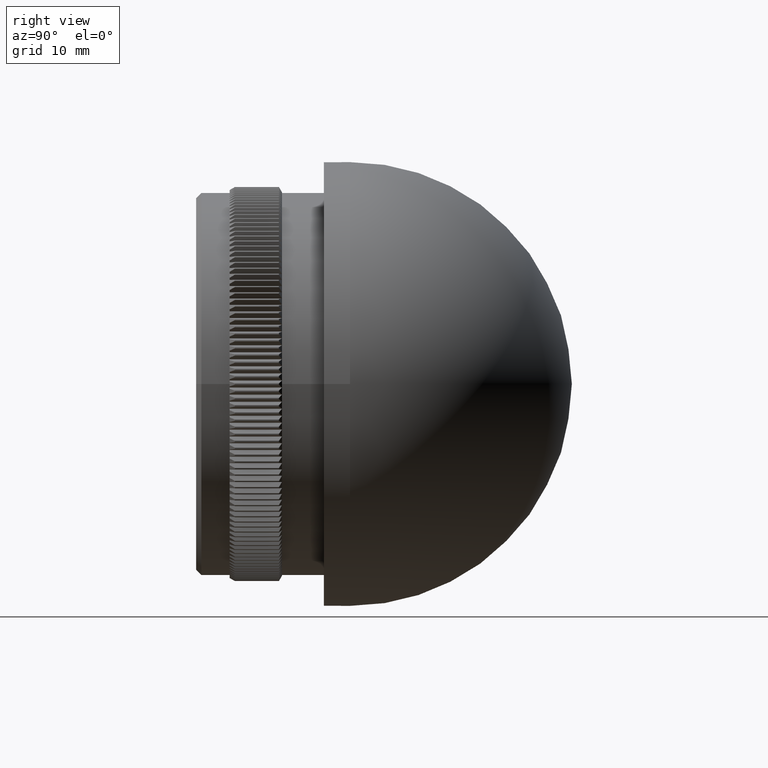
[diagram: clean part render]
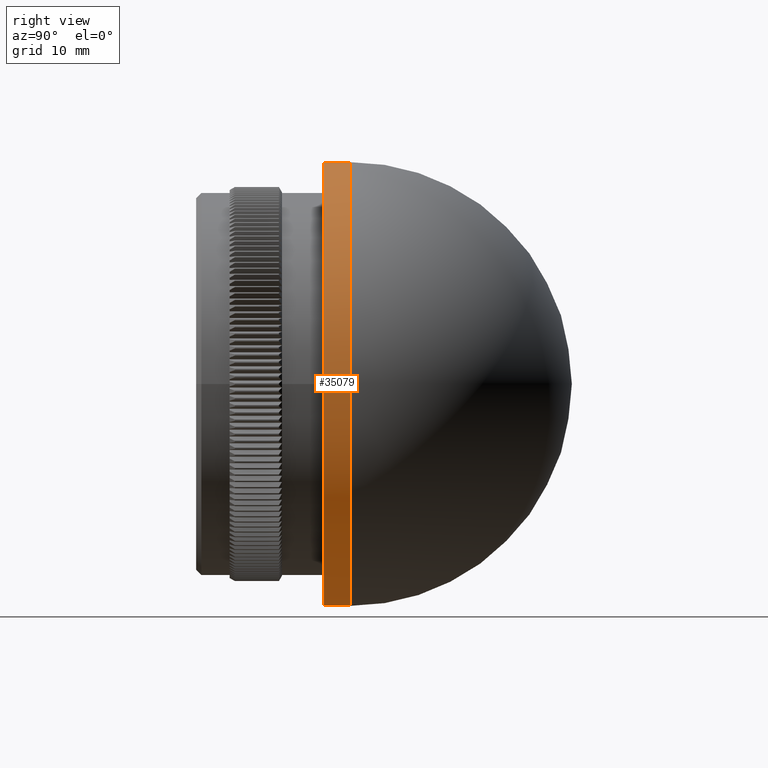
[diagram: same view with one face highlighted and labeled with its STEP entity id]
A machine part, right view. The second image highlights one B-rep face of the part: STEP entity #35079.
In plain terms, the highlighted cylindrical surface (bore or boss wall) has radius 21.2 mm, axis along (-0, -1, -0).
Its self-contained STEP definition (entity closure, byte-faithful):
#1604 = AXIS2_PLACEMENT_3D ( 'NONE', #10973, #10836, #17019 ) ;
#2067 = VERTEX_POINT ( 'NONE', #22142 ) ;
#3339 = CARTESIAN_POINT ( 'NONE',  ( -9.022790038956774074E-15, 12.20000000000001350, 0.000000000000000000 ) ) ;
#3683 = DIRECTION ( 'NONE',  ( -4.511395019478391376E-16, -1.000000000000000000, -0.000000000000000000 ) ) ;
#8093 = CIRCLE ( 'NONE', #14950, 21.19999999999999929 ) ;
#8681 = EDGE_CURVE ( 'NONE', #14575, #14575, #8093, .T. ) ;
#10836 = DIRECTION ( 'NONE',  ( -4.511395019478391376E-16, -1.000000000000000000, -0.000000000000000000 ) ) ;
#10973 = CARTESIAN_POINT ( 'NONE',  ( 0.000000000000000000, 32.19999999999999574, 0.000000000000000000 ) ) ;
#11236 = ORIENTED_EDGE ( 'NONE', *, *, #8681, .T. ) ;
#14575 = VERTEX_POINT ( 'NONE', #27930 ) ;
#14950 = AXIS2_PLACEMENT_3D ( 'NONE', #24991, #3683, #18652 ) ;
#17019 = DIRECTION ( 'NONE',  ( 1.000000000000000000, -3.273063162220390326E-16, 0.000000000000000000 ) ) ;
#18652 = DIRECTION ( 'NONE',  ( 1.000000000000000000, -4.909594743330586228E-16, 0.000000000000000000 ) ) ;
#18822 = FACE_OUTER_BOUND ( 'NONE', #31635, .T. ) ;
#18861 = CIRCLE ( 'NONE', #34407, 21.20000000000000639 ) ;
#22142 = CARTESIAN_POINT ( 'NONE',  ( 21.19999999999999574, 12.20000000000000284, 0.000000000000000000 ) ) ;
#23656 = FACE_OUTER_BOUND ( 'NONE', #31274, .T. ) ;
#24991 = CARTESIAN_POINT ( 'NONE',  ( -7.894941284087175343E-15, 14.70000000000001172, 0.000000000000000000 ) ) ;
#26464 = ORIENTED_EDGE ( 'NONE', *, *, #34491, .F. ) ;
#27589 = DIRECTION ( 'NONE',  ( -4.511395019478391376E-16, -1.000000000000000000, -0.000000000000000000 ) ) ;
#27930 = CARTESIAN_POINT ( 'NONE',  ( 21.19999999999999218, 14.70000000000000107, 0.000000000000000000 ) ) ;
#31274 = EDGE_LOOP ( 'NONE', ( #26464 ) ) ;
#31635 = EDGE_LOOP ( 'NONE', ( #11236 ) ) ;
#34017 = DIRECTION ( 'NONE',  ( 1.000000000000000000, -4.909594743330584256E-16, 0.000000000000000000 ) ) ;
#34407 = AXIS2_PLACEMENT_3D ( 'NONE', #3339, #27589, #34017 ) ;
#34491 = EDGE_CURVE ( 'NONE', #2067, #2067, #18861, .T. ) ;
#35079 = ADVANCED_FACE ( 'NONE', ( #18822, #23656 ), #38096, .T. ) ;
#38096 = CYLINDRICAL_SURFACE ( 'NONE', #1604, 21.20000000000000284 ) ;